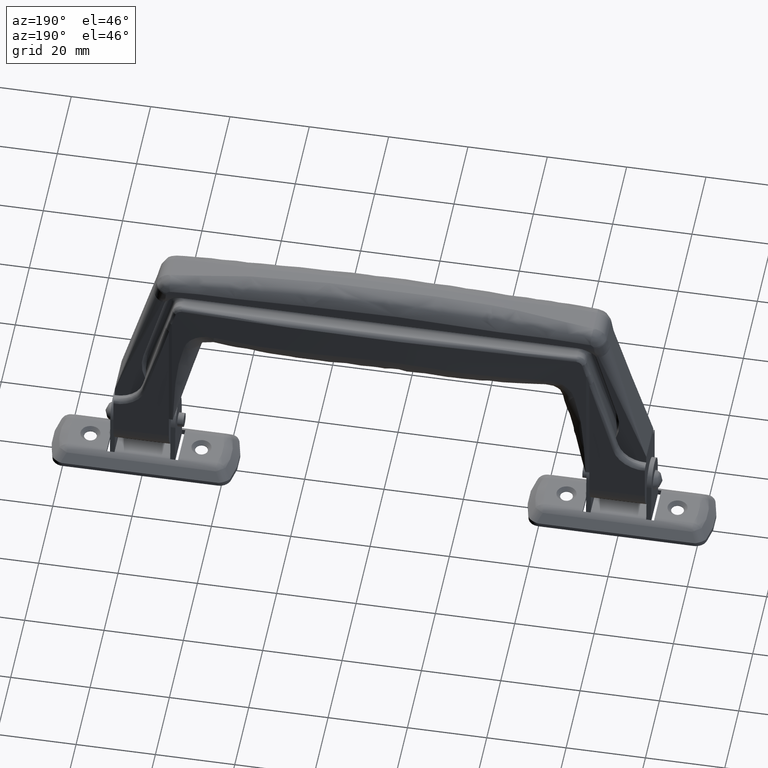
[diagram: clean part render]
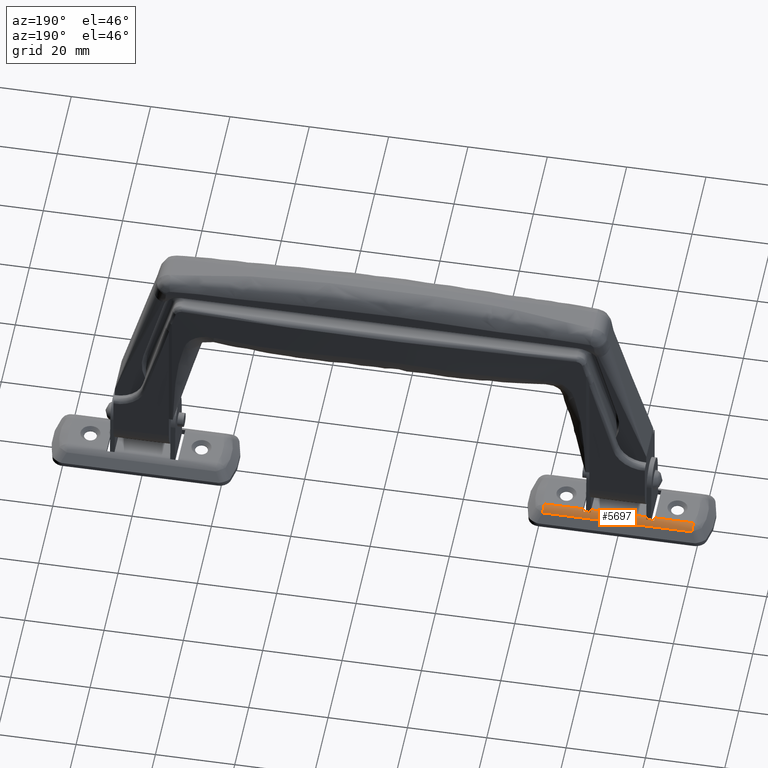
[diagram: same view with one face highlighted and labeled with its STEP entity id]
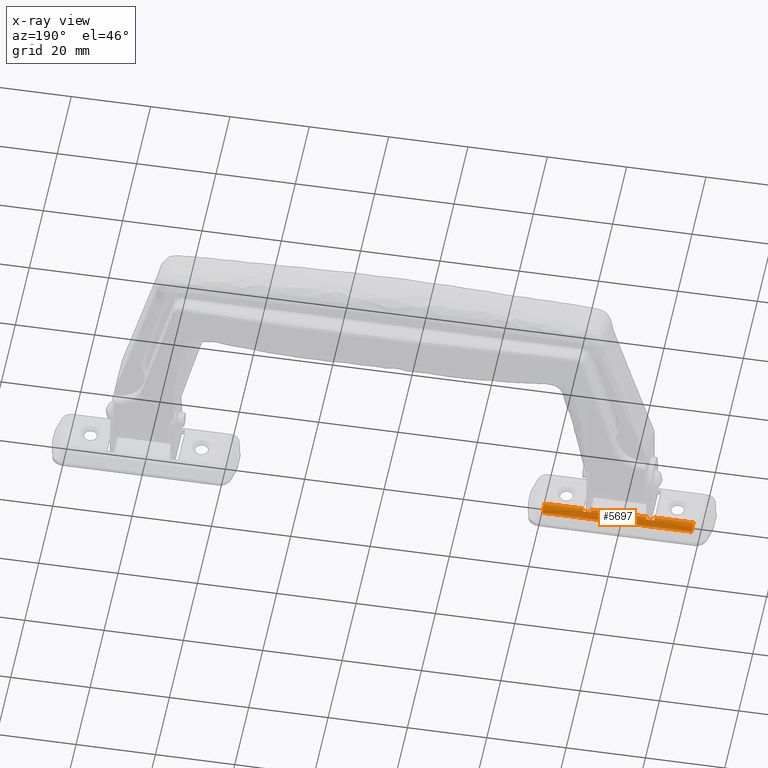
[diagram: x-ray of the same camera — body ghosted, the highlighted face saturated]
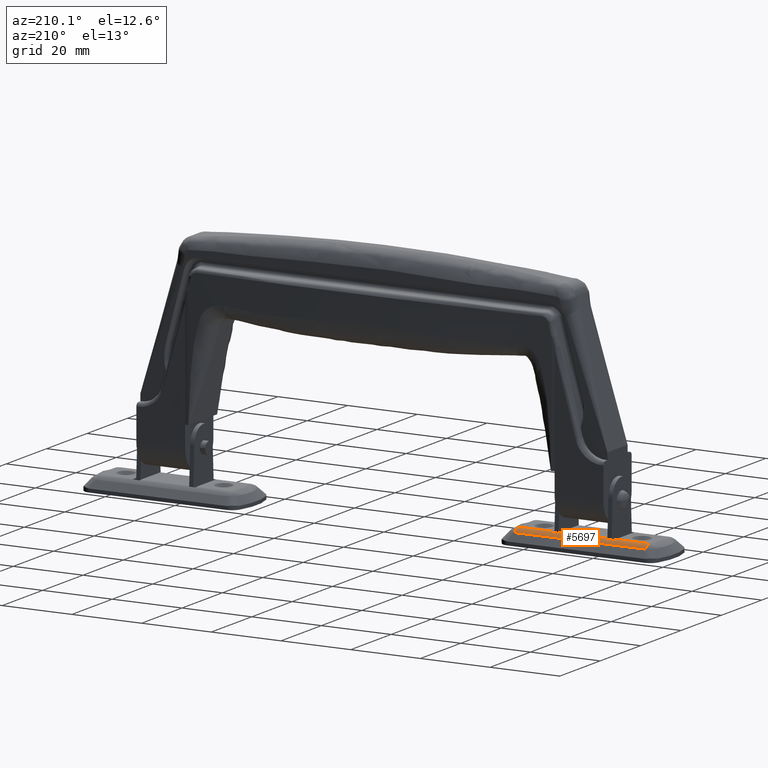
[diagram: same view with one face highlighted and labeled with its STEP entity id]
A machine part, auxiliary view. The second image highlights one B-rep face of the part: STEP entity #5697.
The next image is the same camera in x-ray: the body ghosted, the highlighted face saturated — about 0% of this face is hidden behind the body in this view.
A second angle (auxiliary view) of the same face is appended — the face is thin or edge-on in the first view.
In plain terms, the highlighted face is a freeform B-spline surface patch.
Its self-contained STEP definition (entity closure, byte-faithful):
#2666=CARTESIAN_POINT('',(53.0,-5.250000000000000,3.885581311437840));
#2667=VERTEX_POINT('',#2666);
#2673=CARTESIAN_POINT('',(53.0,-4.429377982819926,4.0));
#2674=VERTEX_POINT('',#2673);
#2675=CARTESIAN_POINT('',(53.0,-4.429377982819926,4.0));
#2676=CARTESIAN_POINT('',(53.000000000000007,-4.847665645714995,4.000000000000000));
#2677=CARTESIAN_POINT('',(53.0,-5.250000000000001,3.885581311437837));
#2685=(BOUNDED_CURVE()B_SPLINE_CURVE(2,(#2675,#2676,#2677),.UNSPECIFIED.,.F.,.U.)CURVE()GEOMETRIC_REPRESENTATION_ITEM()QUASI_UNIFORM_CURVE()RATIONAL_B_SPLINE_CURVE((1.0,0.990419213552005,1.0))REPRESENTATION_ITEM(''));
#2686=EDGE_CURVE('',#2674,#2667,#2685,.T.);
#2724=CARTESIAN_POINT('',(51.0,-5.250000000000000,3.885581311437790));
#2725=VERTEX_POINT('',#2724);
#2731=CARTESIAN_POINT('',(53.0,-5.250000000000000,3.885581311437840));
#2732=CARTESIAN_POINT('',(51.0,-5.250000000000000,3.885581311437790));
#2733=QUASI_UNIFORM_CURVE('',1,(#2731,#2732),.UNSPECIFIED.,.F.,.U.);
#2734=EDGE_CURVE('',#2667,#2725,#2733,.T.);
#2746=CARTESIAN_POINT('',(51.0,-4.429377982819926,4.0));
#2747=VERTEX_POINT('',#2746);
#2753=CARTESIAN_POINT('',(51.0,-5.250000000000012,3.885581311437834));
#2754=CARTESIAN_POINT('',(51.0,-4.847665645715001,4.0));
#2755=CARTESIAN_POINT('',(51.0,-4.429377982819926,4.0));
#2763=(BOUNDED_CURVE()B_SPLINE_CURVE(2,(#2753,#2754,#2755),.UNSPECIFIED.,.F.,.U.)CURVE()GEOMETRIC_REPRESENTATION_ITEM()QUASI_UNIFORM_CURVE()RATIONAL_B_SPLINE_CURVE((1.0,0.990419213552005,1.0))REPRESENTATION_ITEM(''));
#2764=EDGE_CURVE('',#2725,#2747,#2763,.T.);
#2898=CARTESIAN_POINT('',(69.0,-5.250000000000000,3.885581311437840));
#2899=VERTEX_POINT('',#2898);
#2905=CARTESIAN_POINT('',(69.0,-4.429377982819926,4.0));
#2906=VERTEX_POINT('',#2905);
#2907=CARTESIAN_POINT('',(69.0,-4.429377982819926,4.0));
#2908=CARTESIAN_POINT('',(69.0,-4.847665645714995,4.000000000000000));
#2909=CARTESIAN_POINT('',(69.0,-5.250000000000001,3.885581311437837));
#2917=(BOUNDED_CURVE()B_SPLINE_CURVE(2,(#2907,#2908,#2909),.UNSPECIFIED.,.F.,.U.)CURVE()GEOMETRIC_REPRESENTATION_ITEM()QUASI_UNIFORM_CURVE()RATIONAL_B_SPLINE_CURVE((1.0,0.990419213552005,1.0))REPRESENTATION_ITEM(''));
#2918=EDGE_CURVE('',#2906,#2899,#2917,.T.);
#2956=CARTESIAN_POINT('',(67.0,-5.250000000000000,3.885581311437790));
#2957=VERTEX_POINT('',#2956);
#2963=CARTESIAN_POINT('',(69.0,-5.250000000000000,3.885581311437840));
#2964=CARTESIAN_POINT('',(67.0,-5.250000000000000,3.885581311437790));
#2965=QUASI_UNIFORM_CURVE('',1,(#2963,#2964),.UNSPECIFIED.,.F.,.U.);
#2966=EDGE_CURVE('',#2899,#2957,#2965,.T.);
#2978=CARTESIAN_POINT('',(67.0,-4.429377982819926,4.0));
#2979=VERTEX_POINT('',#2978);
#2985=CARTESIAN_POINT('',(67.0,-5.250000000000012,3.885581311437834));
#2986=CARTESIAN_POINT('',(67.0,-4.847665645715001,4.0));
#2987=CARTESIAN_POINT('',(67.0,-4.429377982819926,4.0));
#2995=(BOUNDED_CURVE()B_SPLINE_CURVE(2,(#2985,#2986,#2987),.UNSPECIFIED.,.F.,.U.)CURVE()GEOMETRIC_REPRESENTATION_ITEM()QUASI_UNIFORM_CURVE()RATIONAL_B_SPLINE_CURVE((1.0,0.990419213552005,1.0))REPRESENTATION_ITEM(''));
#2996=EDGE_CURVE('',#2957,#2979,#2995,.T.);
#4319=CARTESIAN_POINT('',(78.802207683069085,-4.429377982821766,4.0));
#4320=VERTEX_POINT('',#4319);
#4321=CARTESIAN_POINT('',(78.802207683068886,-6.640342292948630,3.027717144806985));
#4322=VERTEX_POINT('',#4321);
#4323=CARTESIAN_POINT('',(78.802207683069085,-4.429377982821766,4.0));
#4324=CARTESIAN_POINT('',(78.802207683069696,-5.748643315246047,3.999999999999191));
#4325=CARTESIAN_POINT('',(78.802207683068886,-6.640342292948630,3.027717144806985));
#4333=(BOUNDED_CURVE()B_SPLINE_CURVE(2,(#4323,#4324,#4325),.UNSPECIFIED.,.F.,.U.)CURVE()GEOMETRIC_REPRESENTATION_ITEM()QUASI_UNIFORM_CURVE()RATIONAL_B_SPLINE_CURVE((1.0,0.915397649913918,1.0))REPRESENTATION_ITEM(''));
#4334=EDGE_CURVE('',#4320,#4322,#4333,.T.);
#4511=CARTESIAN_POINT('',(41.197792316930553,-4.429377982821766,4.0));
#4512=VERTEX_POINT('',#4511);
#4528=CARTESIAN_POINT('',(41.197792316930851,-6.640342292948630,3.027717144806985));
#4529=VERTEX_POINT('',#4528);
#4543=CARTESIAN_POINT('',(41.197792316930553,-4.429377982821766,4.0));
#4544=CARTESIAN_POINT('',(41.197792316929906,-5.748643315245995,3.999999999998834));
#4545=CARTESIAN_POINT('',(41.197792316930851,-6.640342292948630,3.027717144806985));
#4553=(BOUNDED_CURVE()B_SPLINE_CURVE(2,(#4543,#4544,#4545),.UNSPECIFIED.,.F.,.U.)CURVE()GEOMETRIC_REPRESENTATION_ITEM()QUASI_UNIFORM_CURVE()RATIONAL_B_SPLINE_CURVE((1.0,0.915397649913944,1.0))REPRESENTATION_ITEM(''));
#4554=EDGE_CURVE('',#4512,#4529,#4553,.T.);
#5331=CARTESIAN_POINT('',(78.802207683068886,-6.640342292948630,3.027717144806985));
#5332=CARTESIAN_POINT('',(41.197792316930851,-6.640342292948630,3.027717144806985));
#5333=QUASI_UNIFORM_CURVE('',1,(#5331,#5332),.UNSPECIFIED.,.F.,.U.);
#5334=EDGE_CURVE('',#4322,#4529,#5333,.T.);
#5547=CARTESIAN_POINT('',(69.0,-4.429377982819926,4.0));
#5548=CARTESIAN_POINT('',(78.802207683069085,-4.429377982821766,4.0));
#5549=QUASI_UNIFORM_CURVE('',1,(#5547,#5548),.UNSPECIFIED.,.F.,.U.);
#5550=EDGE_CURVE('',#2906,#4320,#5549,.T.);
#5661=CARTESIAN_POINT('',(40.257681932776833,-6.710595879621215,2.948344144989149));
#5662=CARTESIAN_POINT('',(79.765820826826655,-6.710595879621215,2.948344144989149));
#5663=CARTESIAN_POINT('',(40.257681932776833,-5.764424676622403,4.056168287489865));
#5664=CARTESIAN_POINT('',(79.765820826826669,-5.764424676622403,4.056168287489865));
#5665=CARTESIAN_POINT('',(40.257681932776819,-4.308718381735996,3.997572561367991));
#5666=CARTESIAN_POINT('',(79.765820826826626,-4.308718381735996,3.997572561367991));
#5674=(BOUNDED_SURFACE()B_SPLINE_SURFACE(1,2,((#5661,#5663,#5665),(#5662,#5664,#5666)),.UNSPECIFIED.,.F.,.F.,.U.)B_SPLINE_SURFACE_WITH_KNOTS((2,2),(3,3),(0.0,39.508138894049843),(0.0,2.759654704209456),.UNSPECIFIED.)GEOMETRIC_REPRESENTATION_ITEM()RATIONAL_B_SPLINE_SURFACE(((1.0,0.895584631553942,0.991228378326274),(1.0,0.895584631553942,0.991228378326274)))REPRESENTATION_ITEM('')SURFACE());
#5675=ORIENTED_EDGE('',*,*,#2734,.T.);
#5676=ORIENTED_EDGE('',*,*,#2764,.T.);
#5677=CARTESIAN_POINT('',(41.197792316930553,-4.429377982821766,4.0));
#5678=CARTESIAN_POINT('',(51.0,-4.429377982819926,4.0));
#5679=QUASI_UNIFORM_CURVE('',1,(#5677,#5678),.UNSPECIFIED.,.F.,.U.);
#5680=EDGE_CURVE('',#4512,#2747,#5679,.T.);
#5681=ORIENTED_EDGE('',*,*,#5680,.F.);
#5682=ORIENTED_EDGE('',*,*,#4554,.T.);
#5683=ORIENTED_EDGE('',*,*,#5334,.F.);
#5684=ORIENTED_EDGE('',*,*,#4334,.F.);
#5685=ORIENTED_EDGE('',*,*,#5550,.F.);
#5686=ORIENTED_EDGE('',*,*,#2918,.T.);
#5687=ORIENTED_EDGE('',*,*,#2966,.T.);
#5688=ORIENTED_EDGE('',*,*,#2996,.T.);
#5689=CARTESIAN_POINT('',(53.0,-4.429377982819926,4.0));
#5690=CARTESIAN_POINT('',(67.0,-4.429377982819926,4.0));
#5691=QUASI_UNIFORM_CURVE('',1,(#5689,#5690),.UNSPECIFIED.,.F.,.U.);
#5692=EDGE_CURVE('',#2674,#2979,#5691,.T.);
#5693=ORIENTED_EDGE('',*,*,#5692,.F.);
#5694=ORIENTED_EDGE('',*,*,#2686,.T.);
#5695=EDGE_LOOP('',(#5675,#5676,#5681,#5682,#5683,#5684,#5685,#5686,#5687,#5688,#5693,#5694));
#5696=FACE_OUTER_BOUND('',#5695,.T.);
#5697=ADVANCED_FACE('',(#5696),#5674,.T.);